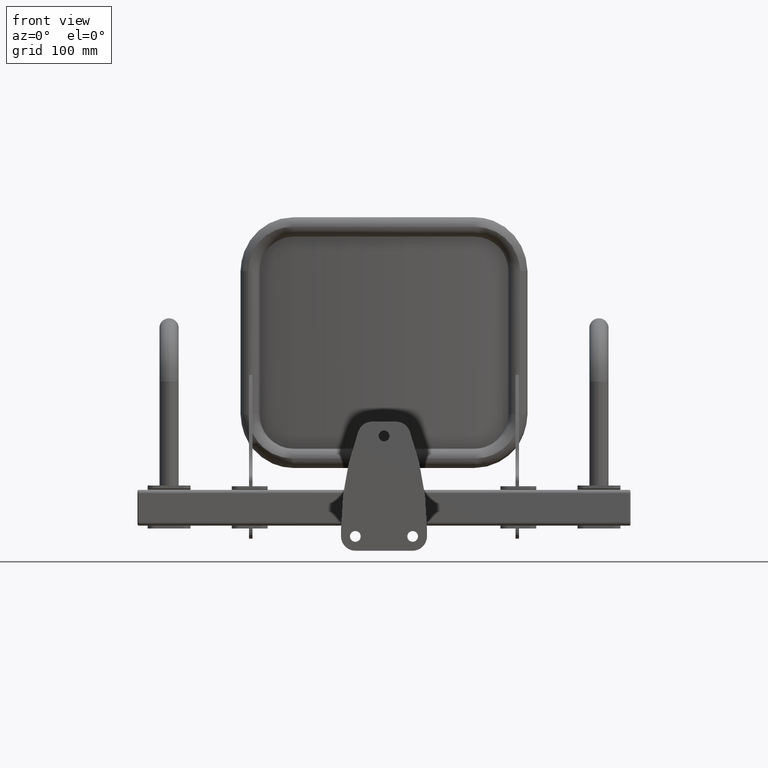
[diagram: clean part render]
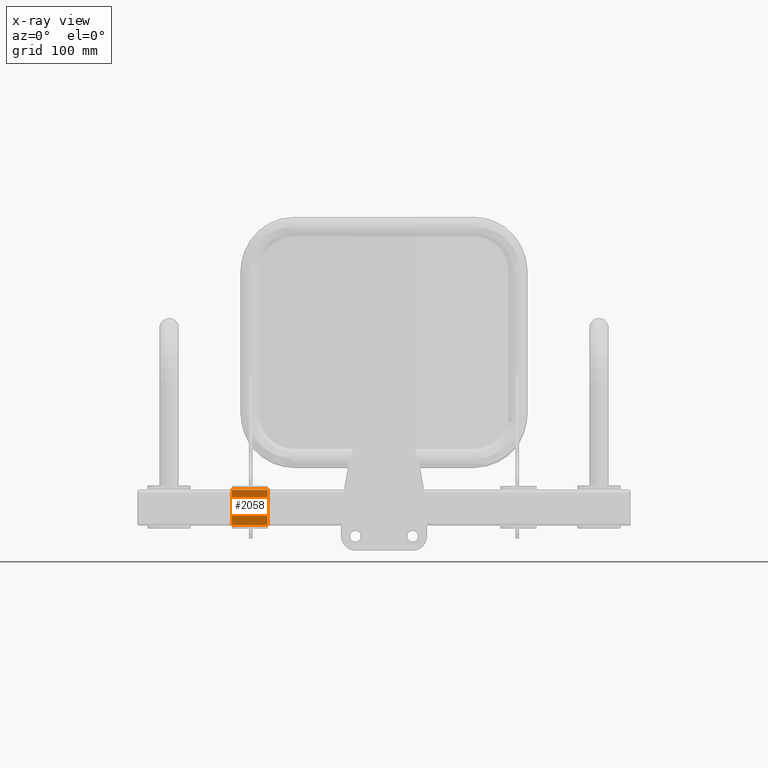
[diagram: x-ray — body ghosted, one internal face saturated and labeled with its STEP entity id]
A machine part, front view, then the same camera in x-ray: the body is ghosted and one INTERNAL B-rep face — a face not visible from any outside direction — is saturated and labeled: STEP entity #2058.
In plain terms, the highlighted planar face has unit normal (0, 1, 0).
Its self-contained STEP definition (entity closure, byte-faithful):
#19 = EDGE_CURVE ( 'NONE', #9463, #1788, #6343, .T. ) ;
#22 = EDGE_CURVE ( 'NONE', #9492, #1803, #6347, .T. ) ;
#23 = EDGE_CURVE ( 'NONE', #9492, #9463, #6346, .T. ) ;
#24 = EDGE_CURVE ( 'NONE', #1788, #1803, #6350, .T. ) ;
#1609 = CARTESIAN_POINT ( 'NONE',  ( -162.5000000000000000, -83.20000000000001700, -205.5000000000000300 ) ) ;
#1638 = CARTESIAN_POINT ( 'NONE',  ( -162.5000000000000000, -83.20000000000001700, -254.5000000000000600 ) ) ;
#1788 = VERTEX_POINT ( 'NONE', #3300 ) ;
#1803 = VERTEX_POINT ( 'NONE', #3332 ) ;
#1878 = ORIENTED_EDGE ( 'NONE', *, *, #24, .T. ) ;
#2058 = ADVANCED_FACE ( 'NONE', ( #8587 ), #5181, .F. ) ;
#3300 = CARTESIAN_POINT ( 'NONE',  ( -212.5000000000000000, -83.20000000000001700, -205.5000000000000300 ) ) ;
#3332 = CARTESIAN_POINT ( 'NONE',  ( -212.5000000000000000, -83.20000000000001700, -254.5000000000000600 ) ) ;
#3481 = CARTESIAN_POINT ( 'NONE',  ( -162.5000000000000000, -83.20000000000001700, -205.5000000000000300 ) ) ;
#3485 = DIRECTION ( 'NONE',  ( -9.244463733058693600E-031, 0.0000000000000000000, 1.000000000000000000 ) ) ;
#3486 = CARTESIAN_POINT ( 'NONE',  ( -212.5000000000000000, -83.20000000000001700, -205.5000000000000300 ) ) ;
#3487 = DIRECTION ( 'NONE',  ( 0.0000000000000000000, 0.0000000000000000000, -1.000000000000000000 ) ) ;
#4094 = DIRECTION ( 'NONE',  ( -1.000000000000000000, -0.0000000000000000000, -0.0000000000000000000 ) ) ;
#4098 = CARTESIAN_POINT ( 'NONE',  ( 212.5000000000000000, -83.20000000000001700, -205.5000000000000300 ) ) ;
#4103 = CARTESIAN_POINT ( 'NONE',  ( 212.5000000000000000, -83.20000000000001700, -254.5000000000000600 ) ) ;
#4104 = DIRECTION ( 'NONE',  ( -1.000000000000000000, -0.0000000000000000000, -0.0000000000000000000 ) ) ;
#5178 = CARTESIAN_POINT ( 'NONE',  ( 212.5000000000000000, -83.20000000000001700, -205.5000000000000300 ) ) ;
#5181 = PLANE ( 'NONE',  #9545 ) ;
#5183 = DIRECTION ( 'NONE',  ( -0.0000000000000000000, 1.000000000000000000, 0.0000000000000000000 ) ) ;
#5184 = DIRECTION ( 'NONE',  ( 0.0000000000000000000, -0.0000000000000000000, 1.000000000000000000 ) ) ;
#5492 = ORIENTED_EDGE ( 'NONE', *, *, #19, .T. ) ;
#5495 = ORIENTED_EDGE ( 'NONE', *, *, #22, .F. ) ;
#5497 = ORIENTED_EDGE ( 'NONE', *, *, #23, .T. ) ;
#6343 = LINE ( 'NONE', #4098, #6345 ) ;
#6345 = VECTOR ( 'NONE', #4094, 1000.000000000000000 ) ;
#6346 = LINE ( 'NONE', #3481, #6351 ) ;
#6347 = LINE ( 'NONE', #4103, #6349 ) ;
#6349 = VECTOR ( 'NONE', #4104, 1000.000000000000000 ) ;
#6350 = LINE ( 'NONE', #3486, #6353 ) ;
#6351 = VECTOR ( 'NONE', #3485, 1000.000000000000000 ) ;
#6353 = VECTOR ( 'NONE', #3487, 1000.000000000000000 ) ;
#8587 = FACE_OUTER_BOUND ( 'NONE', #9938, .T. ) ;
#9463 = VERTEX_POINT ( 'NONE', #1609 ) ;
#9492 = VERTEX_POINT ( 'NONE', #1638 ) ;
#9545 = AXIS2_PLACEMENT_3D ( 'NONE', #5178, #5183, #5184 ) ;
#9938 = EDGE_LOOP ( 'NONE', ( #5495, #5497, #5492, #1878 ) ) ;